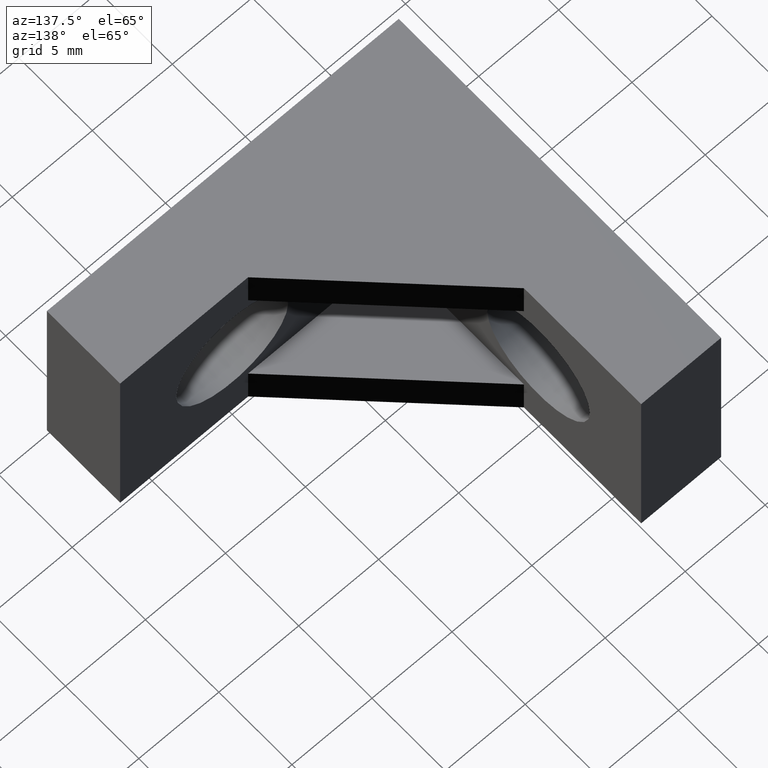
[diagram: clean part render]
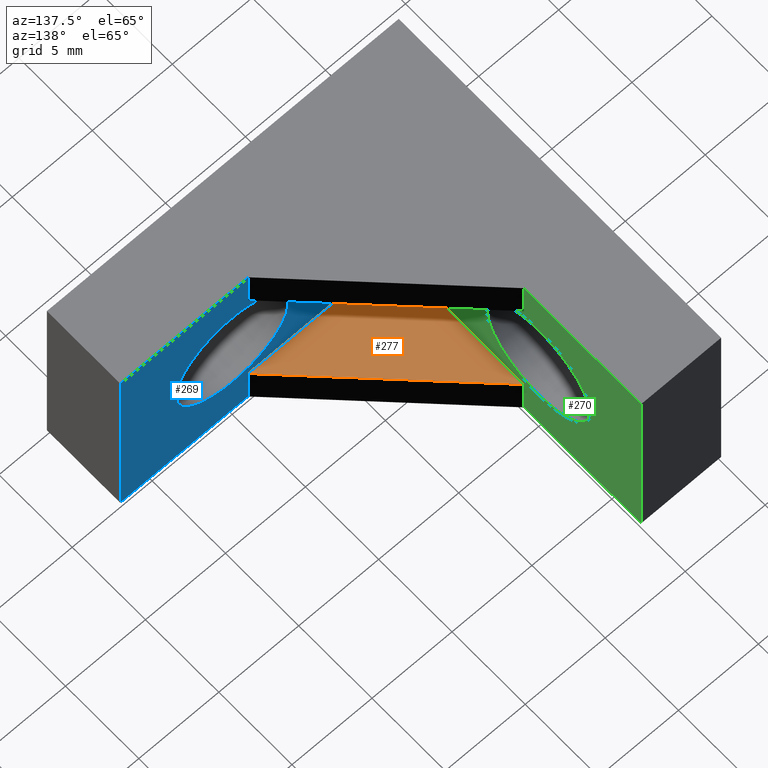
[diagram: same view with three faces highlighted in distinct colors, each labeled with its STEP entity id]
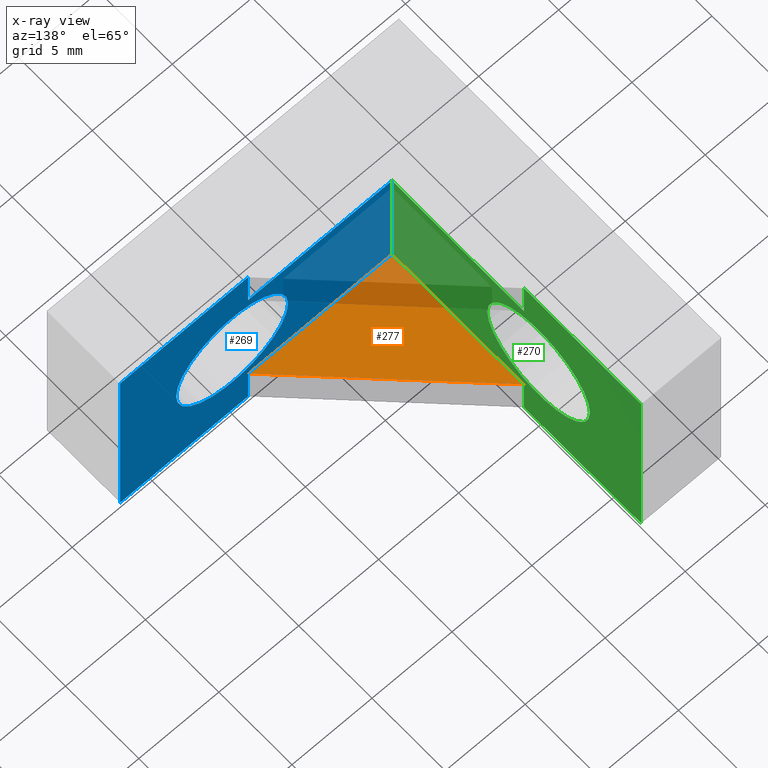
[diagram: x-ray of the same camera — body ghosted, the three highlighted faces saturated]
A machine part, auxiliary view with three faces highlighted in distinct colors.
The next image is the same camera in x-ray (body ghosted, the three faces saturated) — at least one of them is partly hidden behind the body in this view.
Their STEP definitions:

[orange] entity #277 — the highlighted planar face has unit normal (0, 0, -1).
#29=PLANE('',#318);
#43=FACE_OUTER_BOUND('',#61,.T.);
#61=EDGE_LOOP('',(#256,#257,#258));
#74=LINE('',#424,#106);
#79=LINE('',#434,#111);
#94=LINE('',#463,#126);
#106=VECTOR('',#351,1000.);
#111=VECTOR('',#358,1000.);
#126=VECTOR('',#387,1000.);
#142=VERTEX_POINT('',#421);
#143=VERTEX_POINT('',#423);
#147=VERTEX_POINT('',#433);
#170=EDGE_CURVE('',#143,#142,#74,.T.);
#175=EDGE_CURVE('',#147,#143,#79,.T.);
#190=EDGE_CURVE('',#147,#142,#94,.T.);
#256=ORIENTED_EDGE('',*,*,#175,.T.);
#257=ORIENTED_EDGE('',*,*,#170,.T.);
#258=ORIENTED_EDGE('',*,*,#190,.F.);
#277=ADVANCED_FACE('',(#43),#29,.F.);
#318=AXIS2_PLACEMENT_3D('',#462,#385,#386);
#351=DIRECTION('',(1.,5.10212787052002E-17,0.));
#358=DIRECTION('',(1.53063836115601E-16,-1.,0.));
#385=DIRECTION('center_axis',(0.,0.,-1.));
#386=DIRECTION('ref_axis',(-1.,0.,0.));
#387=DIRECTION('',(0.707106781186547,-0.707106781186548,0.));
#421=CARTESIAN_POINT('',(14.,5.,-4.));
#423=CARTESIAN_POINT('',(5.,5.,-4.));
#424=CARTESIAN_POINT('',(5.,5.,-4.));
#433=CARTESIAN_POINT('',(5.,14.,-4.));
#434=CARTESIAN_POINT('',(5.,22.,-4.));
#462=CARTESIAN_POINT('Origin',(11.,11.,-4.));
#463=CARTESIAN_POINT('',(5.,14.,-4.));

[blue] entity #269 — the highlighted planar face has unit normal (0, -1, 0).
#16=FACE_BOUND('',#51,.T.);
#21=PLANE('',#310);
#35=FACE_OUTER_BOUND('',#50,.T.);
#50=EDGE_LOOP('',(#208,#209,#210,#211,#212,#213,#214,#215));
#51=EDGE_LOOP('',(#216));
#70=LINE('',#416,#102);
#72=LINE('',#420,#104);
#73=LINE('',#422,#105);
#74=LINE('',#424,#106);
#75=LINE('',#426,#107);
#76=LINE('',#428,#108);
#77=LINE('',#430,#109);
#78=LINE('',#431,#110);
#102=VECTOR('',#345,1000.);
#104=VECTOR('',#349,1000.);
#105=VECTOR('',#350,1000.);
#106=VECTOR('',#351,1000.);
#107=VECTOR('',#352,1000.);
#108=VECTOR('',#353,1000.);
#109=VECTOR('',#354,1000.);
#110=VECTOR('',#355,1000.);
#128=CIRCLE('',#304,3.5);
#132=VERTEX_POINT('',#394);
#139=VERTEX_POINT('',#413);
#140=VERTEX_POINT('',#415);
#141=VERTEX_POINT('',#419);
#142=VERTEX_POINT('',#421);
#143=VERTEX_POINT('',#423);
#144=VERTEX_POINT('',#425);
#145=VERTEX_POINT('',#427);
#146=VERTEX_POINT('',#429);
#157=EDGE_CURVE('',#132,#132,#128,.T.);
#166=EDGE_CURVE('',#140,#139,#70,.T.);
#168=EDGE_CURVE('',#139,#141,#72,.T.);
#169=EDGE_CURVE('',#141,#142,#73,.T.);
#170=EDGE_CURVE('',#143,#142,#74,.T.);
#171=EDGE_CURVE('',#144,#143,#75,.T.);
#172=EDGE_CURVE('',#145,#144,#76,.T.);
#173=EDGE_CURVE('',#145,#146,#77,.T.);
#174=EDGE_CURVE('',#140,#146,#78,.T.);
#208=ORIENTED_EDGE('',*,*,#168,.T.);
#209=ORIENTED_EDGE('',*,*,#169,.T.);
#210=ORIENTED_EDGE('',*,*,#170,.F.);
#211=ORIENTED_EDGE('',*,*,#171,.F.);
#212=ORIENTED_EDGE('',*,*,#172,.F.);
#213=ORIENTED_EDGE('',*,*,#173,.T.);
#214=ORIENTED_EDGE('',*,*,#174,.F.);
#215=ORIENTED_EDGE('',*,*,#166,.T.);
#216=ORIENTED_EDGE('',*,*,#157,.F.);
#269=ADVANCED_FACE('',(#35,#16),#21,.F.);
#304=AXIS2_PLACEMENT_3D('',#396,#327,#328);
#310=AXIS2_PLACEMENT_3D('',#418,#347,#348);
#327=DIRECTION('center_axis',(-5.10212787052002E-17,1.,0.));
#328=DIRECTION('ref_axis',(-1.,-5.10212787052002E-17,0.));
#345=DIRECTION('',(0.,0.,-1.));
#347=DIRECTION('center_axis',(5.10212787052002E-17,-1.,0.));
#348=DIRECTION('ref_axis',(1.,5.10212787052002E-17,0.));
#349=DIRECTION('',(-1.,-5.10212787052002E-17,0.));
#350=DIRECTION('',(0.,0.,1.));
#351=DIRECTION('',(1.,5.10212787052002E-17,0.));
#352=DIRECTION('',(0.,0.,-1.));
#353=DIRECTION('',(-1.,-5.10212787052002E-17,0.));
#354=DIRECTION('',(0.,0.,1.));
#355=DIRECTION('',(-1.,-5.10212787052002E-17,0.));
#394=CARTESIAN_POINT('',(18.5,5.,-4.28626379701574E-16));
#396=CARTESIAN_POINT('Origin',(15.,5.,0.));
#413=CARTESIAN_POINT('',(22.,5.,-6.5));
#415=CARTESIAN_POINT('',(22.,5.,6.5));
#416=CARTESIAN_POINT('',(22.,5.,6.5));
#418=CARTESIAN_POINT('Origin',(5.,5.,6.5));
#419=CARTESIAN_POINT('',(14.,5.,-6.5));
#420=CARTESIAN_POINT('',(5.,5.,-6.5));
#421=CARTESIAN_POINT('',(14.,5.,-4.));
#422=CARTESIAN_POINT('',(14.,5.,6.5));
#423=CARTESIAN_POINT('',(5.,5.,-4.));
#424=CARTESIAN_POINT('',(5.,5.,-4.));
#425=CARTESIAN_POINT('',(5.,5.,4.));
#426=CARTESIAN_POINT('',(5.,5.,6.5));
#427=CARTESIAN_POINT('',(14.,5.,4.));
#428=CARTESIAN_POINT('',(5.,5.,4.));
#429=CARTESIAN_POINT('',(14.,5.,6.5));
#430=CARTESIAN_POINT('',(14.,5.,6.5));
#431=CARTESIAN_POINT('',(5.,5.,6.5));

[green] entity #270 — the highlighted planar face has unit normal (-1, -0, 0).
#17=FACE_BOUND('',#53,.T.);
#22=PLANE('',#311);
#36=FACE_OUTER_BOUND('',#52,.T.);
#52=EDGE_LOOP('',(#217,#218,#219,#220,#221,#222,#223,#224));
#53=EDGE_LOOP('',(#225));
#75=LINE('',#426,#107);
#79=LINE('',#434,#111);
#80=LINE('',#436,#112);
#81=LINE('',#438,#113);
#82=LINE('',#440,#114);
#83=LINE('',#442,#115);
#84=LINE('',#444,#116);
#85=LINE('',#445,#117);
#107=VECTOR('',#352,1000.);
#111=VECTOR('',#358,1000.);
#112=VECTOR('',#359,1000.);
#113=VECTOR('',#360,1000.);
#114=VECTOR('',#361,1000.);
#115=VECTOR('',#362,1000.);
#116=VECTOR('',#363,1000.);
#117=VECTOR('',#364,1000.);
#130=CIRCLE('',#307,3.5);
#134=VERTEX_POINT('',#400);
#143=VERTEX_POINT('',#423);
#144=VERTEX_POINT('',#425);
#147=VERTEX_POINT('',#433);
#148=VERTEX_POINT('',#435);
#149=VERTEX_POINT('',#437);
#150=VERTEX_POINT('',#439);
#151=VERTEX_POINT('',#441);
#152=VERTEX_POINT('',#443);
#160=EDGE_CURVE('',#134,#134,#130,.T.);
#171=EDGE_CURVE('',#144,#143,#75,.T.);
#175=EDGE_CURVE('',#147,#143,#79,.T.);
#176=EDGE_CURVE('',#147,#148,#80,.T.);
#177=EDGE_CURVE('',#148,#149,#81,.T.);
#178=EDGE_CURVE('',#150,#149,#82,.T.);
#179=EDGE_CURVE('',#151,#150,#83,.T.);
#180=EDGE_CURVE('',#151,#152,#84,.T.);
#181=EDGE_CURVE('',#144,#152,#85,.T.);
#217=ORIENTED_EDGE('',*,*,#175,.F.);
#218=ORIENTED_EDGE('',*,*,#176,.T.);
#219=ORIENTED_EDGE('',*,*,#177,.T.);
#220=ORIENTED_EDGE('',*,*,#178,.F.);
#221=ORIENTED_EDGE('',*,*,#179,.F.);
#222=ORIENTED_EDGE('',*,*,#180,.T.);
#223=ORIENTED_EDGE('',*,*,#181,.F.);
#224=ORIENTED_EDGE('',*,*,#171,.T.);
#225=ORIENTED_EDGE('',*,*,#160,.F.);
#270=ADVANCED_FACE('',(#36,#17),#22,.F.);
#307=AXIS2_PLACEMENT_3D('',#402,#334,#335);
#311=AXIS2_PLACEMENT_3D('',#432,#356,#357);
#334=DIRECTION('center_axis',(1.,1.53063836115601E-16,0.));
#335=DIRECTION('ref_axis',(-1.53063836115601E-16,1.,0.));
#352=DIRECTION('',(0.,0.,-1.));
#356=DIRECTION('center_axis',(-1.,-1.53063836115601E-16,0.));
#357=DIRECTION('ref_axis',(1.53063836115601E-16,-1.,0.));
#358=DIRECTION('',(1.53063836115601E-16,-1.,0.));
#359=DIRECTION('',(0.,0.,-1.));
#360=DIRECTION('',(-1.53063836115601E-16,1.,0.));
#361=DIRECTION('',(0.,0.,-1.));
#362=DIRECTION('',(-1.53063836115601E-16,1.,0.));
#363=DIRECTION('',(0.,0.,-1.));
#364=DIRECTION('',(-1.53063836115601E-16,1.,0.));
#400=CARTESIAN_POINT('',(5.,11.5,-4.28626379701574E-16));
#402=CARTESIAN_POINT('Origin',(5.,15.,0.));
#423=CARTESIAN_POINT('',(5.,5.,-4.));
#425=CARTESIAN_POINT('',(5.,5.,4.));
#426=CARTESIAN_POINT('',(5.,5.,6.5));
#432=CARTESIAN_POINT('Origin',(5.,22.,6.5));
#433=CARTESIAN_POINT('',(5.,14.,-4.));
#434=CARTESIAN_POINT('',(5.,22.,-4.));
#435=CARTESIAN_POINT('',(5.,14.,-6.5));
#436=CARTESIAN_POINT('',(5.,14.,6.5));
#437=CARTESIAN_POINT('',(5.,22.,-6.5));
#438=CARTESIAN_POINT('',(5.,22.,-6.5));
#439=CARTESIAN_POINT('',(5.,22.,6.5));
#440=CARTESIAN_POINT('',(5.,22.,6.5));
#441=CARTESIAN_POINT('',(5.,14.,6.5));
#442=CARTESIAN_POINT('',(5.,22.,6.5));
#443=CARTESIAN_POINT('',(5.,14.,4.));
#444=CARTESIAN_POINT('',(5.,14.,6.5));
#445=CARTESIAN_POINT('',(5.,22.,4.));